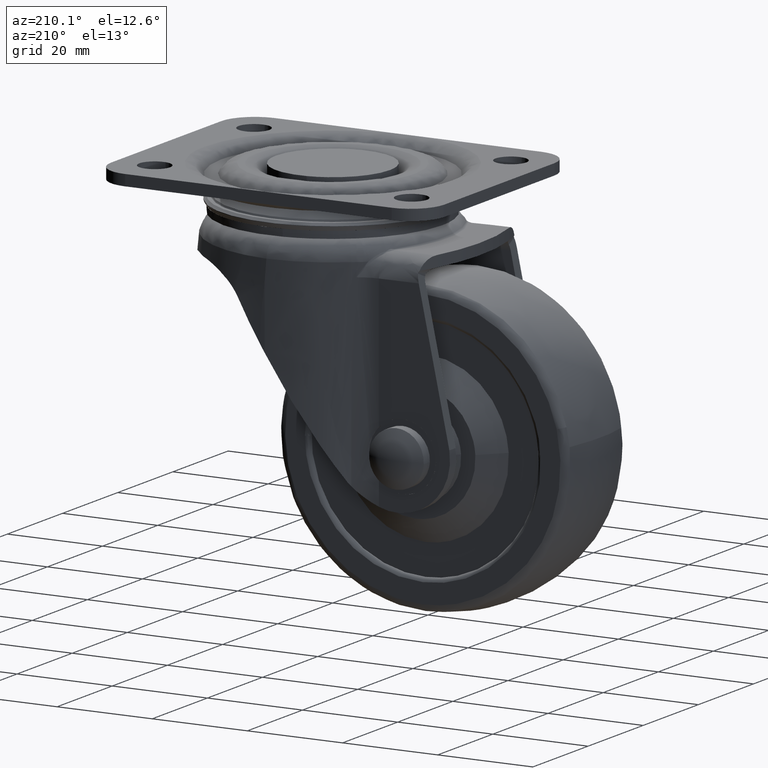
[diagram: clean part render]
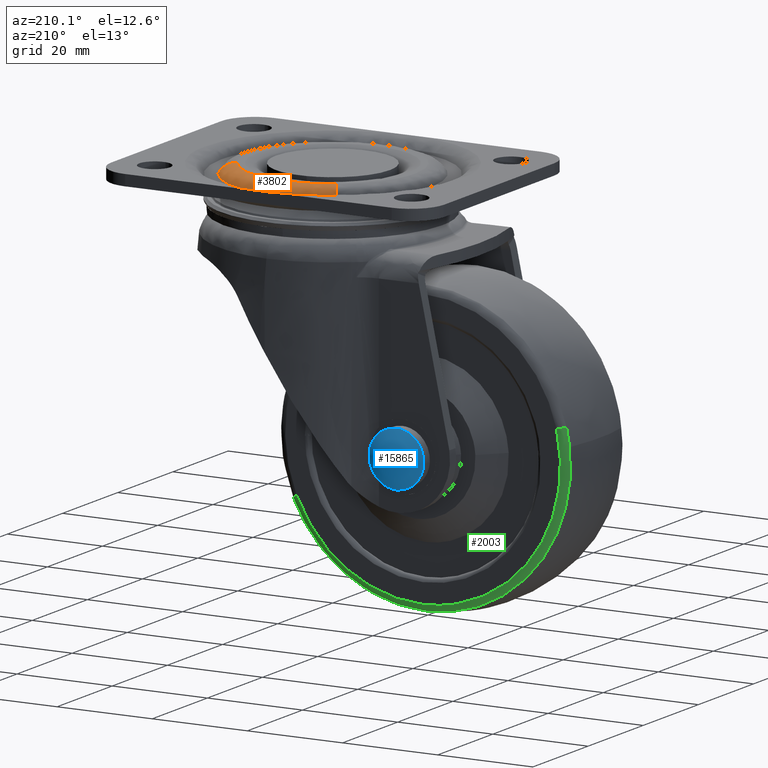
[diagram: same view with three faces highlighted in distinct colors, each labeled with its STEP entity id]
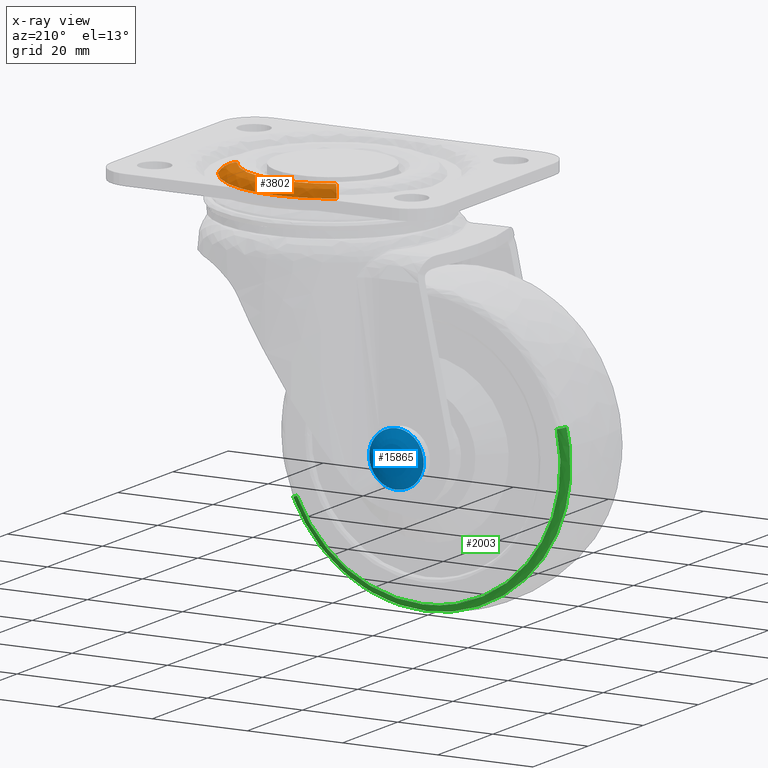
[diagram: x-ray of the same camera — body ghosted, the three highlighted faces saturated]
A machine part, auxiliary view with three faces highlighted in distinct colors.
The next image is the same camera in x-ray (body ghosted, the three faces saturated) — at least one of them is partly hidden behind the body in this view.
Their STEP definitions:

[orange] entity #3802 — the highlighted face is a freeform B-spline surface patch.
#3618=CARTESIAN_POINT('',(-9.259911339025873,14.773780646176050,-7.469925E-016));
#3619=VERTEX_POINT('',#3618);
#3635=CARTESIAN_POINT('',(-11.099637235575500,17.708982275268980,-1.999999999468171));
#3636=VERTEX_POINT('',#3635);
#3637=CARTESIAN_POINT('',(-11.099637235575498,17.708982275268983,-1.999999999468172));
#3638=CARTESIAN_POINT('',(-10.486395270174720,16.730581732576741,-3.334581E-009));
#3639=CARTESIAN_POINT('',(-9.259911339025873,14.773780646176048,-7.469925E-016));
#3647=(BOUNDED_CURVE()B_SPLINE_CURVE(2,(#3637,#3638,#3639),.UNSPECIFIED.,.F.,.U.)B_SPLINE_CURVE_WITH_KNOTS((3,3),(-1.633016443619278,-0.356287691310555),.UNSPECIFIED.)CURVE()GEOMETRIC_REPRESENTATION_ITEM()RATIONAL_B_SPLINE_CURVE((0.889754784433803,0.771415586076437,0.891754321903802))REPRESENTATION_ITEM(''));
#3648=EDGE_CURVE('',#3636,#3619,#3647,.T.);
#3682=CARTESIAN_POINT('',(18.314809612621261,10.068651788621599,-1.999999999464522));
#3683=VERTEX_POINT('',#3682);
#3697=CARTESIAN_POINT('',(15.279194228030530,8.399808108695186,-7.301895E-016));
#3698=VERTEX_POINT('',#3697);
#3699=CARTESIAN_POINT('',(18.314809612621261,10.068651788621599,-1.999999999464523));
#3700=CARTESIAN_POINT('',(17.302937817524228,9.512370561786154,-1.110632E-009));
#3701=CARTESIAN_POINT('',(15.279194228030532,8.399808108695186,-7.301895E-016));
#3709=(BOUNDED_CURVE()B_SPLINE_CURVE(2,(#3699,#3700,#3701),.UNSPECIFIED.,.F.,.U.)B_SPLINE_CURVE_WITH_KNOTS((3,3),(-1.633016443616591,-0.356287690079687),.UNSPECIFIED.)CURVE()GEOMETRIC_REPRESENTATION_ITEM()RATIONAL_B_SPLINE_CURVE((0.910229671997401,0.789167271779987,0.912275222725491))REPRESENTATION_ITEM(''));
#3710=EDGE_CURVE('',#3683,#3698,#3709,.T.);
#3745=CARTESIAN_POINT('',(18.398075719378770,10.114427718123320,-2.174443144943634));
#3746=CARTESIAN_POINT('',(8.283648001255449,28.512503437502097,-2.174443144943632));
#3747=CARTESIAN_POINT('',(-10.114427718123318,18.398075719378770,-2.174443144943634));
#3748=CARTESIAN_POINT('',(-10.640972232758713,18.108605422871374,-2.174443144943632));
#3749=CARTESIAN_POINT('',(-11.150099436185485,17.789494675350166,-2.174443144943632));
#3750=CARTESIAN_POINT('',(17.365435466704334,9.546728935174032,0.122976421200051));
#3751=CARTESIAN_POINT('',(7.818706531530303,26.912164401878375,0.122976421200051));
#3752=CARTESIAN_POINT('',(-9.546728935174029,17.365435466704334,0.122976421200051));
#3753=CARTESIAN_POINT('',(-10.043719757948885,17.092212449786750,0.122976421200051));
#3754=CARTESIAN_POINT('',(-10.524270861787352,16.791012629906966,0.122976421200051));
#3755=CARTESIAN_POINT('',(15.105581777492972,8.304363856255092,-0.004909373734358));
#3756=CARTESIAN_POINT('',(6.801217921237882,23.409945633748070,-0.004909373734358));
#3757=CARTESIAN_POINT('',(-8.304363856255090,15.105581777492972,-0.004909373734358));
#3758=CARTESIAN_POINT('',(-8.736678699754597,14.867914681067123,-0.004909373734358));
#3759=CARTESIAN_POINT('',(-9.154693209739943,14.605911547354557,-0.004909373734358));
#3767=(BOUNDED_SURFACE()B_SPLINE_SURFACE(2,2,((#3745,#3750,#3755),(#3746,#3751,#3756),(#3747,#3752,#3757),(#3748,#3753,#3758),(#3749,#3754,#3759)),.UNSPECIFIED.,.F.,.F.,.U.)B_SPLINE_SURFACE_WITH_KNOTS((3,2,3),(3,3),(0.0,34.785687057194927,36.177113212514080),(0.0,4.715476006838868),.UNSPECIFIED.)GEOMETRIC_REPRESENTATION_ITEM()RATIONAL_B_SPLINE_SURFACE(((0.922933017826018,0.776361740436014,0.925182939898188),(0.652612195485742,0.548970651316096,0.654203130640115),(0.922933017826018,0.776361740436014,0.925182939898188),(0.912120195244328,0.767266105545499,0.914343757864925),(0.902172397644220,0.758898120752284,0.904371709567358)))REPRESENTATION_ITEM('')SURFACE());
#3768=CARTESIAN_POINT('',(15.279194228030530,8.399808108695186,-7.301895E-016));
#3769=CARTESIAN_POINT('',(10.311561559883399,17.435898384862249,0.0));
#3770=CARTESIAN_POINT('',(0.0,17.435898384862249,0.0));
#3771=CARTESIAN_POINT('',(-5.012619746783890,17.435898384862252,0.0));
#3772=CARTESIAN_POINT('',(-9.259911339025873,14.773780646176045,-7.469925E-016));
#3780=(BOUNDED_CURVE()B_SPLINE_CURVE(2,(#3768,#3769,#3770,#3771,#3772),.UNSPECIFIED.,.F.,.U.)B_SPLINE_CURVE_WITH_KNOTS((3,2,3),(0.582050816104518,0.750000000000000,0.840826728949136),.UNSPECIFIED.)CURVE()GEOMETRIC_REPRESENTATION_ITEM()RATIONAL_B_SPLINE_CURVE((0.870842360845089,0.803235291727039,1.0,0.893589868015163,0.864498809752154))REPRESENTATION_ITEM(''));
#3781=EDGE_CURVE('',#3698,#3619,#3780,.T.);
#3782=ORIENTED_EDGE('',*,*,#3781,.F.);
#3783=ORIENTED_EDGE('',*,*,#3710,.F.);
#3784=CARTESIAN_POINT('',(18.314809612621264,10.068651788621601,-1.999999999464522));
#3785=CARTESIAN_POINT('',(12.360225544180105,20.900000000000006,-2.000000000000000));
#3786=CARTESIAN_POINT('',(0.0,20.899999999999999,-2.0));
#3787=CARTESIAN_POINT('',(-6.008509019280018,20.900000000000002,-2.0));
#3788=CARTESIAN_POINT('',(-11.099637235575496,17.708982275268983,-1.999999999468171));
#3796=(BOUNDED_CURVE()B_SPLINE_CURVE(2,(#3784,#3785,#3786,#3787,#3788),.UNSPECIFIED.,.F.,.U.)B_SPLINE_CURVE_WITH_KNOTS((3,2,3),(0.582050816104055,0.750000000000000,0.840826728946743),.UNSPECIFIED.)CURVE()GEOMETRIC_REPRESENTATION_ITEM()RATIONAL_B_SPLINE_CURVE((0.870842360845462,0.803235291726496,1.0,0.893589868017966,0.864498809753687))REPRESENTATION_ITEM(''));
#3797=EDGE_CURVE('',#3683,#3636,#3796,.T.);
#3798=ORIENTED_EDGE('',*,*,#3797,.T.);
#3799=ORIENTED_EDGE('',*,*,#3648,.T.);
#3800=EDGE_LOOP('',(#3782,#3783,#3798,#3799));
#3801=FACE_OUTER_BOUND('',#3800,.T.);
#3802=ADVANCED_FACE('',(#3801),#3767,.T.);

[blue] entity #15865 — the highlighted face is a freeform B-spline surface patch.
#15669=CARTESIAN_POINT('',(-30.739275144878750,20.085530648232300,-48.850947105648473));
#15670=VERTEX_POINT('',#15669);
#15676=CARTESIAN_POINT('',(-25.0,20.085530648232300,-54.249918072073612));
#15677=VERTEX_POINT('',#15676);
#15678=CARTESIAN_POINT('',(-25.0,20.085530648232300,-54.249918072073612));
#15679=CARTESIAN_POINT('',(-30.409059952464272,20.085530648232304,-54.249918072073612));
#15680=CARTESIAN_POINT('',(-30.739275144878754,20.085530648232307,-48.850947105648466));
#15688=(BOUNDED_CURVE()B_SPLINE_CURVE(2,(#15678,#15679,#15680),.UNSPECIFIED.,.F.,.U.)B_SPLINE_CURVE_WITH_KNOTS((3,3),(0.500000000000000,0.739332962240582),.UNSPECIFIED.)CURVE()GEOMETRIC_REPRESENTATION_ITEM()RATIONAL_B_SPLINE_CURVE((1.0,0.719603993284790,0.976072041670230))REPRESENTATION_ITEM(''));
#15689=EDGE_CURVE('',#15677,#15670,#15688,.T.);
#15691=CARTESIAN_POINT('',(-19.290195169736471,20.085530648232300,-47.821221144301823));
#15692=VERTEX_POINT('',#15691);
#15693=CARTESIAN_POINT('',(-19.290195169736467,20.085530648232297,-47.821221144301816));
#15694=CARTESIAN_POINT('',(-19.249999927926407,20.085530648232297,-48.159379307691140));
#15695=CARTESIAN_POINT('',(-19.249999927926400,20.085530648232300,-48.499918000000001));
#15696=CARTESIAN_POINT('',(-19.249999927926400,20.085530648232297,-54.249918072073598));
#15697=CARTESIAN_POINT('',(-25.0,20.085530648232300,-54.249918072073612));
#15705=(BOUNDED_CURVE()B_SPLINE_CURVE(2,(#15693,#15694,#15695,#15696,#15697),.UNSPECIFIED.,.F.,.U.)B_SPLINE_CURVE_WITH_KNOTS((3,2,3),(0.229562473513191,0.250000000000000,0.500000000000000),.UNSPECIFIED.)CURVE()GEOMETRIC_REPRESENTATION_ITEM()RATIONAL_B_SPLINE_CURVE((0.956026754183077,0.976055948330773,1.0,0.707106781186548,1.0))REPRESENTATION_ITEM(''));
#15706=EDGE_CURVE('',#15692,#15677,#15705,.T.);
#15750=CARTESIAN_POINT('',(-25.0,20.085530648232300,-42.749917927926397));
#15751=VERTEX_POINT('',#15750);
#15752=CARTESIAN_POINT('',(-25.0,20.085530648232300,-42.749917927926397));
#15753=CARTESIAN_POINT('',(-19.892996411840372,20.085530648232300,-42.749917927926404));
#15754=CARTESIAN_POINT('',(-19.290195169736467,20.085530648232297,-47.821221144301816));
#15762=(BOUNDED_CURVE()B_SPLINE_CURVE(2,(#15752,#15753,#15754),.UNSPECIFIED.,.F.,.U.)B_SPLINE_CURVE_WITH_KNOTS((3,3),(0.0,0.229562473513191),.UNSPECIFIED.)CURVE()GEOMETRIC_REPRESENTATION_ITEM()RATIONAL_B_SPLINE_CURVE((1.0,0.731050832855775,0.956026754183077))REPRESENTATION_ITEM(''));
#15763=EDGE_CURVE('',#15751,#15692,#15762,.T.);
#15765=CARTESIAN_POINT('',(-30.739275144878750,20.085530648232300,-48.850947105648473));
#15766=CARTESIAN_POINT('',(-30.750000072073604,20.085530648232300,-48.675596391192052));
#15767=CARTESIAN_POINT('',(-30.750000072073600,20.085530648232300,-48.499918000000001));
#15768=CARTESIAN_POINT('',(-30.750000072073600,20.085530648232297,-42.749917927926397));
#15769=CARTESIAN_POINT('',(-25.0,20.085530648232300,-42.749917927926397));
#15777=(BOUNDED_CURVE()B_SPLINE_CURVE(2,(#15765,#15766,#15767,#15768,#15769),.UNSPECIFIED.,.F.,.U.)B_SPLINE_CURVE_WITH_KNOTS((3,2,3),(0.739332962240582,0.750000000000000,1.0),.UNSPECIFIED.)CURVE()GEOMETRIC_REPRESENTATION_ITEM()RATIONAL_B_SPLINE_CURVE((0.976072041670231,0.987502787901758,1.0,0.707106781186548,1.0))REPRESENTATION_ITEM(''));
#15778=EDGE_CURVE('',#15670,#15751,#15777,.T.);
#15835=CARTESIAN_POINT('',(-30.667516607482209,18.082741053506286,-42.832275322117184));
#15836=CARTESIAN_POINT('',(-28.108900860681203,19.760812221023095,-42.281977967485027));
#15837=CARTESIAN_POINT('',(-21.891082077693319,19.760812221023095,-42.281977967485027));
#15838=CARTESIAN_POINT('',(-19.332457794646583,18.082724265056157,-42.832280827628388));
#15839=CARTESIAN_POINT('',(-31.217828580302204,19.760894126223313,-45.390934553973928));
#15840=CARTESIAN_POINT('',(-28.443235190252651,21.799888999999990,-45.056606217110762));
#15841=CARTESIAN_POINT('',(-21.556745913297501,21.799888999999990,-45.056606217110762));
#15842=CARTESIAN_POINT('',(-18.782143922769272,19.760873919194967,-45.390937867264306));
#15843=CARTESIAN_POINT('',(-31.217828580302211,19.760894126223320,-51.608901499511056));
#15844=CARTESIAN_POINT('',(-28.443235190252651,21.799889000000000,-51.943229842125753));
#15845=CARTESIAN_POINT('',(-21.556745913297501,21.799889000000000,-51.943229842125753));
#15846=CARTESIAN_POINT('',(-18.782143922769272,19.760873919194974,-51.608898186220536));
#15847=CARTESIAN_POINT('',(-30.667516590223581,18.082741000876844,-54.167560758126257));
#15848=CARTESIAN_POINT('',(-28.108900850294841,19.760812157677439,-54.717858118711185));
#15849=CARTESIAN_POINT('',(-21.891082088079774,19.760812157677439,-54.717858118711185));
#15850=CARTESIAN_POINT('',(-19.332457811905275,18.082724212426832,-54.167555252614967));
#15858=(BOUNDED_SURFACE()B_SPLINE_SURFACE(2,2,((#15835,#15839,#15843,#15847),(#15836,#15840,#15844,#15848),(#15837,#15841,#15845,#15849),(#15838,#15842,#15846,#15850)),.UNSPECIFIED.,.F.,.F.,.U.)B_SPLINE_SURFACE_WITH_KNOTS((3,1,3),(3,1,3),(0.0,6.535083467948238,13.070202800387330),(0.0,6.535228836836946,13.070457786101761),.UNSPECIFIED.)GEOMETRIC_REPRESENTATION_ITEM()RATIONAL_B_SPLINE_SURFACE(((1.215077230018849,1.107536222906070,1.107536222906070,1.215077233718982),(1.107541007112779,1.0,1.0,1.107541010812911),(1.107541007112779,1.0,1.0,1.107541010812911),(1.215078410338117,1.107537403225338,1.107537403225338,1.215078414038249)))REPRESENTATION_ITEM('')SURFACE());
#15859=ORIENTED_EDGE('',*,*,#15763,.T.);
#15860=ORIENTED_EDGE('',*,*,#15706,.T.);
#15861=ORIENTED_EDGE('',*,*,#15689,.T.);
#15862=ORIENTED_EDGE('',*,*,#15778,.T.);
#15863=EDGE_LOOP('',(#15859,#15860,#15861,#15862));
#15864=FACE_OUTER_BOUND('',#15863,.T.);
#15865=ADVANCED_FACE('',(#15864),#15858,.T.);

[green] entity #2003 — the highlighted face is a freeform B-spline surface patch.
#1804=CARTESIAN_POINT('',(2.821780382165502,9.350645590031704,-60.731221419175782));
#1805=VERTEX_POINT('',#1804);
#1823=CARTESIAN_POINT('',(1.486667047328061,10.500000000000000,-60.144264866917112));
#1824=VERTEX_POINT('',#1823);
#1825=CARTESIAN_POINT('',(1.486667047328061,10.500000000000000,-60.144264866917112));
#1826=CARTESIAN_POINT('',(2.568814116111316,10.499999951361474,-60.620009731339110));
#1827=CARTESIAN_POINT('',(2.821780382165502,9.350645590031704,-60.731221419175775));
#1835=(BOUNDED_CURVE()B_SPLINE_CURVE(2,(#1825,#1826,#1827),.UNSPECIFIED.,.F.,.U.)B_SPLINE_CURVE_WITH_KNOTS((3,3),(-1.700933469396890,-0.310023897676248),.UNSPECIFIED.)CURVE()GEOMETRIC_REPRESENTATION_ITEM()RATIONAL_B_SPLINE_CURVE((0.843155635473446,0.661111358895133,0.840309821927477))REPRESENTATION_ITEM(''));
#1836=EDGE_CURVE('',#1824,#1805,#1835,.T.);
#1855=CARTESIAN_POINT('',(-53.112487164142273,10.500000000000000,-41.657227716102952));
#1856=VERTEX_POINT('',#1855);
#1870=CARTESIAN_POINT('',(-54.529555040454873,9.350640120326272,-41.312307804649940));
#1871=VERTEX_POINT('',#1870);
#1872=CARTESIAN_POINT('',(-53.112487164142266,10.500000000000000,-41.657227716102952));
#1873=CARTESIAN_POINT('',(-54.261063756380146,10.499999961104011,-41.377659642430622));
#1874=CARTESIAN_POINT('',(-54.529555040454852,9.350640120326272,-41.312307804649940));
#1882=(BOUNDED_CURVE()B_SPLINE_CURVE(2,(#1872,#1873,#1874),.UNSPECIFIED.,.F.,.U.)B_SPLINE_CURVE_WITH_KNOTS((3,3),(-1.700933478672855,-0.310019592464835),.UNSPECIFIED.)CURVE()GEOMETRIC_REPRESENTATION_ITEM()RATIONAL_B_SPLINE_CURVE((0.898751553203535,0.704703054148517,0.895719272567810))REPRESENTATION_ITEM(''));
#1883=EDGE_CURVE('',#1856,#1871,#1882,.T.);
#1901=CARTESIAN_POINT('',(-53.023558543186134,10.497205121804219,-41.678873293464939));
#1902=CARTESIAN_POINT('',(-59.844603249721217,10.497205121804219,-69.702431836651058));
#1903=CARTESIAN_POINT('',(-31.821044706535076,10.497205121804219,-76.523476543186149));
#1904=CARTESIAN_POINT('',(-8.328047362990253,10.497205121804219,-82.241764779987960));
#1905=CARTESIAN_POINT('',(1.402881400126198,10.497205121804217,-60.107430140109948));
#1906=CARTESIAN_POINT('',(-54.321728480351503,10.578879949905700,-41.362893609284605));
#1907=CARTESIAN_POINT('',(-61.458752871066913,10.578879949905696,-70.684622089636107));
#1908=CARTESIAN_POINT('',(-32.137024390715403,10.578879949905700,-77.821646480351504));
#1909=CARTESIAN_POINT('',(-7.555731895850065,10.578879949905700,-83.804830050471665));
#1910=CARTESIAN_POINT('',(2.625974706972515,10.578879949905700,-60.645139270888301));
#1911=CARTESIAN_POINT('',(-54.547756726060769,9.260682856273260,-41.307877442563779));
#1912=CARTESIAN_POINT('',(-61.739797283496998,9.260682856273260,-70.855634168624562));
#1913=CARTESIAN_POINT('',(-32.192040557436229,9.260682856273260,-78.047674726060762));
#1914=CARTESIAN_POINT('',(-7.421261742772104,9.260682856273258,-84.076980013971777));
#1915=CARTESIAN_POINT('',(2.838931136304777,9.260682856273258,-60.738761413916102));
#1923=(BOUNDED_SURFACE()B_SPLINE_SURFACE(2,2,((#1901,#1906,#1911),(#1902,#1907,#1912),(#1903,#1908,#1913),(#1904,#1909,#1914),(#1905,#1910,#1915)),.UNSPECIFIED.,.F.,.F.,.U.)B_SPLINE_SURFACE_WITH_KNOTS((3,2,3),(3,3),(0.0,50.385680743138138,94.725079797099696),(0.0,2.287875974478749),.UNSPECIFIED.)GEOMETRIC_REPRESENTATION_ITEM()RATIONAL_B_SPLINE_SURFACE(((0.919098384424076,0.684507963782314,0.915762629866339),(0.649900700203864,0.484020222966670,0.647541965535715),(0.919098384424076,0.684507963782314,0.915762629866339),(0.682204422310290,0.508078751864547,0.679728445255390),(0.862243833516767,0.642164952922050,0.859114425559712)))REPRESENTATION_ITEM('')SURFACE());
#1924=CARTESIAN_POINT('',(-25.0,9.350649350649350,-78.891631214015163));
#1925=VERTEX_POINT('',#1924);
#1926=CARTESIAN_POINT('',(-25.0,9.350649350649350,-78.891631214015163));
#1927=CARTESIAN_POINT('',(-5.162090667139896,9.350649350649350,-78.891631214015177));
#1928=CARTESIAN_POINT('',(2.821780382165502,9.350645590031704,-60.731221419175775));
#1936=(BOUNDED_CURVE()B_SPLINE_CURVE(2,(#1926,#1927,#1928),.UNSPECIFIED.,.F.,.U.)B_SPLINE_CURVE_WITH_KNOTS((3,3),(0.0,0.181662006011238),.UNSPECIFIED.)CURVE()GEOMETRIC_REPRESENTATION_ITEM()RATIONAL_B_SPLINE_CURVE((1.0,0.787169721293039,0.883644845544777))REPRESENTATION_ITEM(''));
#1937=EDGE_CURVE('',#1925,#1805,#1936,.T.);
#1938=ORIENTED_EDGE('',*,*,#1937,.F.);
#1939=CARTESIAN_POINT('',(-55.188445298987460,9.350640399127247,-44.990768055840249));
#1940=VERTEX_POINT('',#1939);
#1941=CARTESIAN_POINT('',(-55.188445298987467,9.350640399127247,-44.990768055840256));
#1942=CARTESIAN_POINT('',(-55.391715296676260,9.350640629997704,-46.739455627124457));
#1943=CARTESIAN_POINT('',(-55.391715234759523,9.350640889259424,-48.499917765105671));
#1944=CARTESIAN_POINT('',(-55.391714165860797,9.350645365020474,-78.891631103371196));
#1945=CARTESIAN_POINT('',(-25.0,9.350649350649350,-78.891631214015163));
#1953=(BOUNDED_CURVE()B_SPLINE_CURVE(2,(#1941,#1942,#1943,#1944,#1945),.UNSPECIFIED.,.F.,.U.)B_SPLINE_CURVE_WITH_KNOTS((3,2,3),(0.730000033891764,0.750000000000000,1.0),.UNSPECIFIED.)CURVE()GEOMETRIC_REPRESENTATION_ITEM()RATIONAL_B_SPLINE_CURVE((0.956886184897878,0.976568582201595,1.0,0.707106781186548,1.0))REPRESENTATION_ITEM(''));
#1954=EDGE_CURVE('',#1940,#1925,#1953,.T.);
#1955=ORIENTED_EDGE('',*,*,#1954,.F.);
#1956=CARTESIAN_POINT('',(-54.529555040454873,9.350640120326272,-41.312307804649933));
#1957=CARTESIAN_POINT('',(-54.972291507689469,9.350640256028482,-43.131245057874686));
#1958=CARTESIAN_POINT('',(-55.188445298987467,9.350640399127247,-44.990768055840256));
#1966=(BOUNDED_CURVE()B_SPLINE_CURVE(2,(#1956,#1957,#1958),.UNSPECIFIED.,.F.,.U.)B_SPLINE_CURVE_WITH_KNOTS((3,3),(0.709598322185860,0.730000033891764),.UNSPECIFIED.)CURVE()GEOMETRIC_REPRESENTATION_ITEM()RATIONAL_B_SPLINE_CURVE((0.920631806031943,0.936808421100762,0.956886184897878))REPRESENTATION_ITEM(''));
#1967=EDGE_CURVE('',#1871,#1940,#1966,.T.);
#1968=ORIENTED_EDGE('',*,*,#1967,.F.);
#1969=ORIENTED_EDGE('',*,*,#1883,.F.);
#1970=CARTESIAN_POINT('',(-25.0,10.500000000000000,-77.433192000000091));
#1971=VERTEX_POINT('',#1970);
#1972=CARTESIAN_POINT('',(-53.112487164142266,10.500000000000000,-41.657227716102952));
#1973=CARTESIAN_POINT('',(-53.933274000000104,10.499999999999996,-45.029345799452337));
#1974=CARTESIAN_POINT('',(-53.933274000000097,10.500000000000000,-48.499918000000001));
#1975=CARTESIAN_POINT('',(-53.933274000000104,10.500000000000000,-77.433192000000091));
#1976=CARTESIAN_POINT('',(-25.0,10.500000000000000,-77.433192000000091));
#1984=(BOUNDED_CURVE()B_SPLINE_CURVE(2,(#1972,#1973,#1974,#1975,#1976),.UNSPECIFIED.,.F.,.U.)B_SPLINE_CURVE_WITH_KNOTS((3,2,3),(0.709598322305233,0.750000000000000,1.0),.UNSPECIFIED.)CURVE()GEOMETRIC_REPRESENTATION_ITEM()RATIONAL_B_SPLINE_CURVE((0.920631806221246,0.952666490298064,1.0,0.707106781186547,1.0))REPRESENTATION_ITEM(''));
#1985=EDGE_CURVE('',#1856,#1971,#1984,.T.);
#1986=ORIENTED_EDGE('',*,*,#1985,.T.);
#1987=CARTESIAN_POINT('',(-25.0,10.500000000000000,-77.433192000000091));
#1988=CARTESIAN_POINT('',(-6.114072773043955,10.500000000000000,-77.433192000000091));
#1989=CARTESIAN_POINT('',(1.486667047328061,10.500000000000000,-60.144264866917105));
#1997=(BOUNDED_CURVE()B_SPLINE_CURVE(2,(#1987,#1988,#1989),.UNSPECIFIED.,.F.,.U.)B_SPLINE_CURVE_WITH_KNOTS((3,3),(0.0,0.181662010432831),.UNSPECIFIED.)CURVE()GEOMETRIC_REPRESENTATION_ITEM()RATIONAL_B_SPLINE_CURVE((1.0,0.787169716112820,0.883644850241123))REPRESENTATION_ITEM(''));
#1998=EDGE_CURVE('',#1971,#1824,#1997,.T.);
#1999=ORIENTED_EDGE('',*,*,#1998,.T.);
#2000=ORIENTED_EDGE('',*,*,#1836,.T.);
#2001=EDGE_LOOP('',(#1938,#1955,#1968,#1969,#1986,#1999,#2000));
#2002=FACE_OUTER_BOUND('',#2001,.T.);
#2003=ADVANCED_FACE('',(#2002),#1923,.T.);